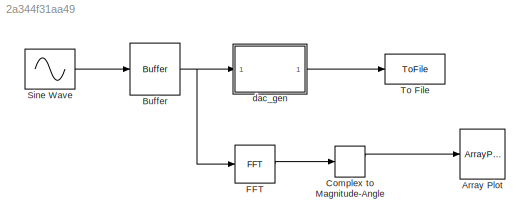
MODEL slx_2a344f31aa49
KIND model
CONFIG AbsTol = auto
CONFIG EnableMultiTasking = off
CONFIG FixedStep = auto
CONFIG MaxStep = auto
CONFIG MinStep = auto
CONFIG RelTol = 1e-3
CONFIG SampleTimeConstraint = Unconstrained
CONFIG SolverName = VariableStepAuto
CONFIG StartTime = 0.0
CONFIG StopTime = 10.0
BLOCK [ArrayPlot] Array Plot
  DefaultConfigurationName = dsp.scopes.ArrayPlotBlockSpecification
  GraphicalSettings = {"Style":{"BackgroundColor":[0.1568627450980392,0.1568627450980392,0.1568627450980392],"AxesColor":[0,0,0],"LabelsColor":[0.6862745098039216,0.6862745098039216,0.6862745098039216],"LineStyle":["-"],"LineColor":[[1,1,0.06666666666666667]],"LineWidth":[1.5],"Marker":["o"],"FontSize":"small"},"Cursors":{"Enabled":true,"XLocation":[1053.301602463116,5181.303775837651],"SnapToData":true,"LockSpacing":f...<+127ch>
  Ports = [1]
  WindowPosition = [-1106.000000,306.000000,800.000000,500.000000,]
  YLimits = [-47.401148229206456,426.6236230872108]
BLOCK [Buffer] Buffer
  N = 10000
  OutputFrames = off
BLOCK [ComplexToMagnitudeAngle] Complex to Magnitude-Angle
  Ports = [1, 2]
BLOCK [Reference] FFT  REF=dspxfrm3/FFT
  Ports = [1, 1]
  SourceBlock = dspxfrm3/FFT
  SourceProductBaseCode = DS
  SourceType = FFT
BLOCK [Sin] Sine Wave
  Frequency = 6308.3180412
  Ports = [0, 1]
  SampleTime = 0.0001
BLOCK [ToFile] To File
  Filename = points.mat
  Ports = [1]
  SaveFormat = Timeseries
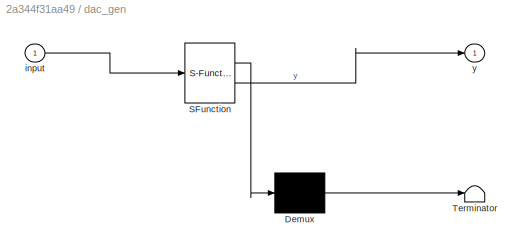
BLOCK [SubSystem] dac_gen
  ErrorFcn = Stateflow.Translate.translate
  PermitHierarchicalResolution = ExplicitOnly
  Ports = [1, 1]
  RequestExecContextInheritance = off
  SFBlockType = MATLAB Function
  TreatAsAtomicUnit = on
BLOCK [Demux] dac_gen/ Demux 
  Outputs = 1
  Ports = [1, 1]
BLOCK [S-Function] dac_gen/ SFunction 
  EnableBusSupport = on
  FunctionName = sf_sfun
  PortCounts = [1 2]
  Ports = [1, 2]
  SFcnIsStateOwnerBlock = off
  SFunctionDeploymentMode = off
  Tag = Stateflow S-Function 2
BLOCK [Terminator] dac_gen/ Terminator 
BLOCK [Inport] dac_gen/input
BLOCK [Outport] dac_gen/y
NET Buffer:1 -> FFT:1, dac_gen:1
LINE Complex to Magnitude-Angle:1 -> Array Plot:1
LINE FFT:1 -> Complex to Magnitude-Angle:1
LINE Sine Wave:1 -> Buffer:1
LINE dac_gen:1 -> To File:1
note: NET lines group one-source signal fan-out (src -> all destinations, sorted); 1:1 wires keep LINE
CHART dac_gen states=1 transitions=1
  STATE_LABEL 'eML_blk_kernel()'
  STATE_LABEL "SCRIPT:\nfunction y = fcn(input)\n    input = input';\n    points_btw_two_samples = 10;\n    total_point = length(input)*points_btw_two_samples;\n    dac_arr = zeros(1, total_point);\n    dac_arr_index = 1;\n\n    for i = 1:length(input)-1\n        dac_arr(dac_arr_index) = input(i);\n        dac_arr_index = dac_arr_index + 1;\n        for j = 1:(points_btw_two_samples-1)\n            slope = (input(i+1) - inp...<+287ch>"
CHART  states=0 transitions=0
